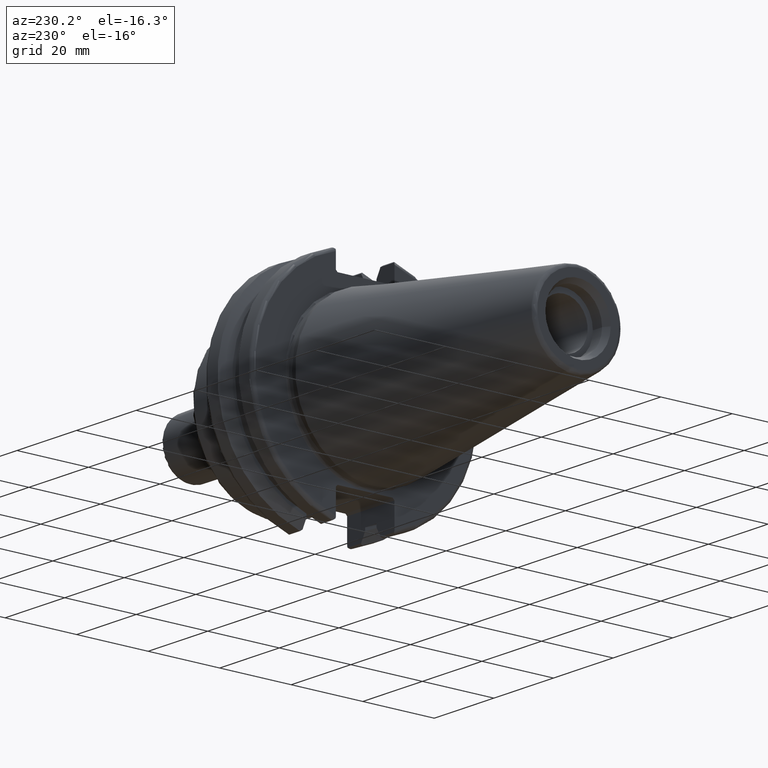
[diagram: clean part render]
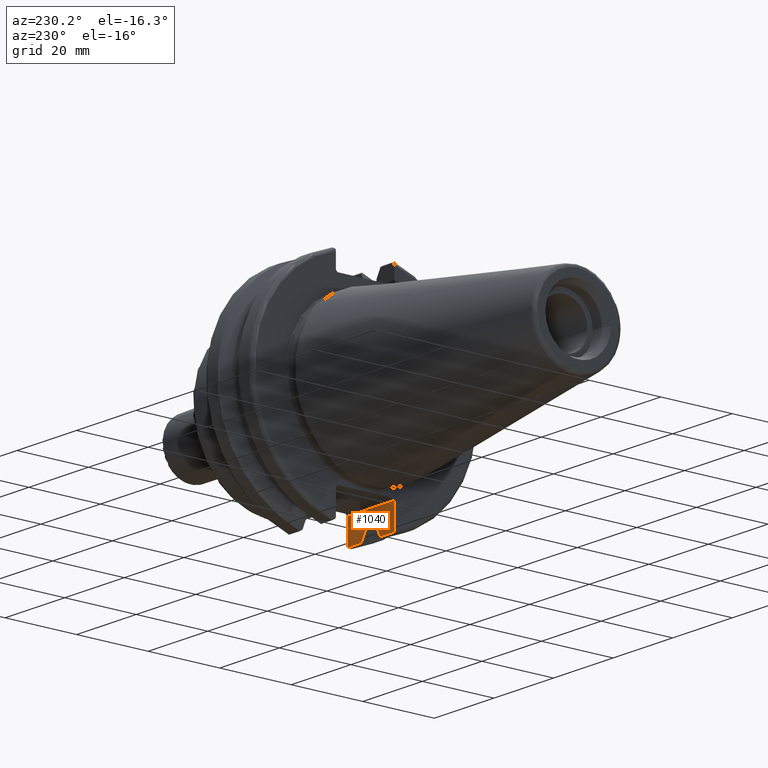
[diagram: same view with one face highlighted and labeled with its STEP entity id]
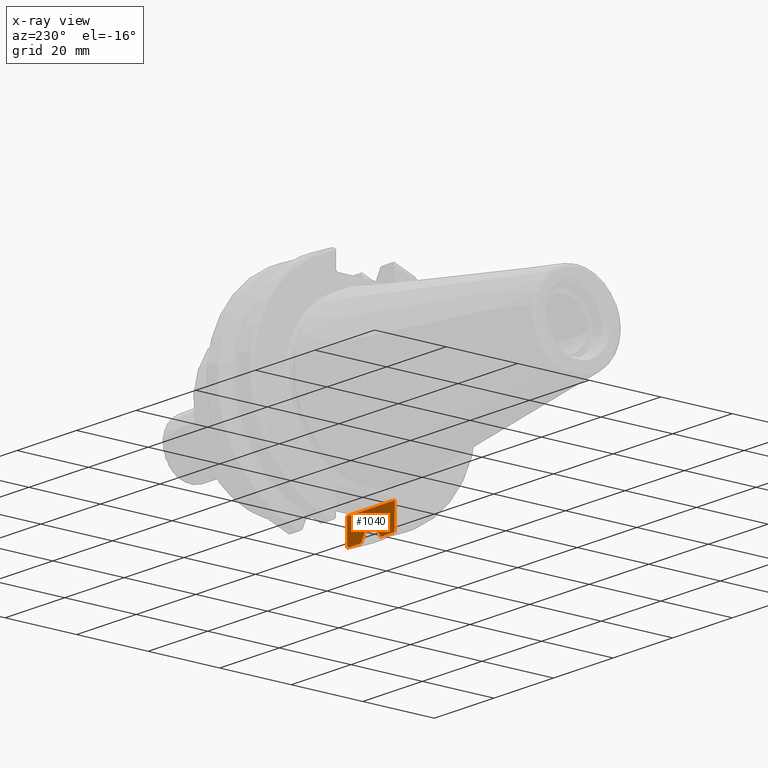
[diagram: x-ray of the same camera — body ghosted, the highlighted face saturated]
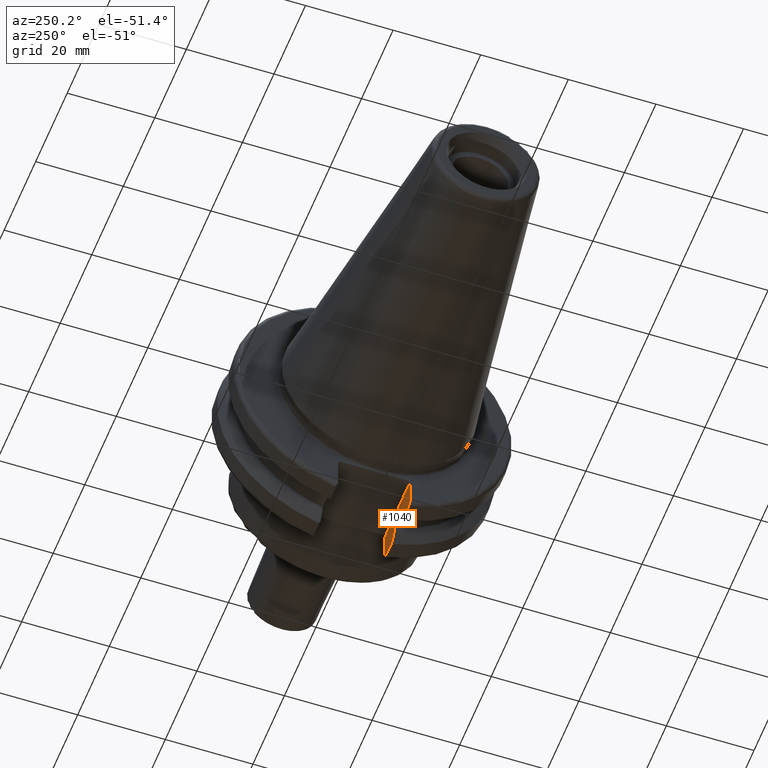
[diagram: same view with one face highlighted and labeled with its STEP entity id]
A machine part, auxiliary view. The second image highlights one B-rep face of the part: STEP entity #1040.
The next image is the same camera in x-ray: the body ghosted, the highlighted face saturated — about 0% of this face is hidden behind the body in this view.
A second angle (auxiliary view) of the same face is appended — the face is thin or edge-on in the first view.
In plain terms, the highlighted planar face has unit normal (0, -1, 0).
Its self-contained STEP definition (entity closure, byte-faithful):
#20=(
BOUNDED_CURVE()
B_SPLINE_CURVE(2,(#1786,#1787,#1788),.UNSPECIFIED.,.F.,.F.)
B_SPLINE_CURVE_WITH_KNOTS((3,3),(0.,0.276549142796619),.UNSPECIFIED.)
CURVE()
GEOMETRIC_REPRESENTATION_ITEM()
RATIONAL_B_SPLINE_CURVE((1.,1.00095203903827,1.00031614444983))
REPRESENTATION_ITEM('')
);
#21=(
BOUNDED_CURVE()
B_SPLINE_CURVE(2,(#1796,#1797,#1798),.UNSPECIFIED.,.F.,.F.)
B_SPLINE_CURVE_WITH_KNOTS((3,3),(0.0550586467396013,0.331607789535851),
 .UNSPECIFIED.)
CURVE()
GEOMETRIC_REPRESENTATION_ITEM()
RATIONAL_B_SPLINE_CURVE((1.00031614445107,1.00095203904202,1.))
REPRESENTATION_ITEM('')
);
#54=PLANE('',#1155);
#90=LINE('',#1625,#160);
#107=LINE('',#1718,#177);
#116=LINE('',#1784,#186);
#117=LINE('',#1790,#187);
#118=LINE('',#1792,#188);
#119=LINE('',#1794,#189);
#120=LINE('',#1800,#190);
#121=LINE('',#1807,#191);
#160=VECTOR('',#1316,10.);
#177=VECTOR('',#1351,10.);
#186=VECTOR('',#1368,10.);
#187=VECTOR('',#1369,10.);
#188=VECTOR('',#1370,10.);
#189=VECTOR('',#1371,10.);
#190=VECTOR('',#1372,10.);
#191=VECTOR('',#1373,10.);
#248=FACE_OUTER_BOUND('',#311,.T.);
#311=EDGE_LOOP('',(#820,#821,#822,#823,#824,#825,#826,#827,#828,#829,#830,
#831));
#361=B_SPLINE_CURVE_WITH_KNOTS('',3,(#1724,#1725,#1726,#1727,#1728,#1729),
 .UNSPECIFIED.,.F.,.F.,(4,2,4),(0.0977383630915687,0.112311108149119,0.150804350305566),
 .UNSPECIFIED.);
#366=B_SPLINE_CURVE_WITH_KNOTS('',3,(#1801,#1802,#1803,#1804,#1805,#1806),
 .UNSPECIFIED.,.F.,.F.,(4,2,4),(0.452741154494498,0.491581665024872,0.505824174364157),
 .UNSPECIFIED.);
#450=VERTEX_POINT('',#1603);
#460=VERTEX_POINT('',#1623);
#483=VERTEX_POINT('',#1715);
#484=VERTEX_POINT('',#1717);
#486=VERTEX_POINT('',#1723);
#497=VERTEX_POINT('',#1783);
#498=VERTEX_POINT('',#1785);
#499=VERTEX_POINT('',#1789);
#500=VERTEX_POINT('',#1791);
#501=VERTEX_POINT('',#1793);
#502=VERTEX_POINT('',#1795);
#503=VERTEX_POINT('',#1799);
#575=EDGE_CURVE('',#460,#450,#90,.T.);
#604=EDGE_CURVE('',#483,#484,#107,.T.);
#607=EDGE_CURVE('',#486,#483,#361,.T.);
#621=EDGE_CURVE('',#497,#486,#116,.T.);
#622=EDGE_CURVE('',#498,#497,#20,.T.);
#623=EDGE_CURVE('',#499,#498,#117,.T.);
#624=EDGE_CURVE('',#500,#499,#118,.T.);
#625=EDGE_CURVE('',#501,#500,#119,.T.);
#626=EDGE_CURVE('',#502,#501,#21,.T.);
#627=EDGE_CURVE('',#503,#502,#120,.T.);
#628=EDGE_CURVE('',#450,#503,#366,.T.);
#629=EDGE_CURVE('',#484,#460,#121,.T.);
#820=ORIENTED_EDGE('',*,*,#607,.F.);
#821=ORIENTED_EDGE('',*,*,#621,.F.);
#822=ORIENTED_EDGE('',*,*,#622,.F.);
#823=ORIENTED_EDGE('',*,*,#623,.F.);
#824=ORIENTED_EDGE('',*,*,#624,.F.);
#825=ORIENTED_EDGE('',*,*,#625,.F.);
#826=ORIENTED_EDGE('',*,*,#626,.F.);
#827=ORIENTED_EDGE('',*,*,#627,.F.);
#828=ORIENTED_EDGE('',*,*,#628,.F.);
#829=ORIENTED_EDGE('',*,*,#575,.F.);
#830=ORIENTED_EDGE('',*,*,#629,.F.);
#831=ORIENTED_EDGE('',*,*,#604,.F.);
#1040=ADVANCED_FACE('',(#248),#54,.F.);
#1155=AXIS2_PLACEMENT_3D('',#1782,#1366,#1367);
#1316=DIRECTION('',(0.,0.,-1.));
#1351=DIRECTION('',(0.,0.,1.));
#1366=DIRECTION('center_axis',(0.,-1.,0.));
#1367=DIRECTION('ref_axis',(-1.,0.,0.));
#1368=DIRECTION('',(1.,0.,0.));
#1369=DIRECTION('',(0.,0.,-1.));
#1370=DIRECTION('',(1.,0.,0.));
#1371=DIRECTION('',(0.,0.,1.));
#1372=DIRECTION('',(1.,0.,0.));
#1373=DIRECTION('',(-1.,0.,0.));
#1603=CARTESIAN_POINT('',(3.175,-8.19,-29.6392712461019));
#1623=CARTESIAN_POINT('',(3.175,-8.19,-23.1));
#1625=CARTESIAN_POINT('',(3.175,-8.19,-11.3));
#1715=CARTESIAN_POINT('',(19.05,-8.19,-29.6392712461019));
#1717=CARTESIAN_POINT('',(19.05,-8.19,-23.1));
#1718=CARTESIAN_POINT('',(19.05,-8.19,-11.3));
#1723=CARTESIAN_POINT('',(18.9058722749097,-8.19,-30.1755016258903));
#1724=CARTESIAN_POINT('Ctrl Pts',(18.9058722749097,-8.19,-30.1755016258903));
#1725=CARTESIAN_POINT('Ctrl Pts',(18.9324477233044,-8.19,-30.1299319366157));
#1726=CARTESIAN_POINT('Ctrl Pts',(18.9550700364447,-8.19,-30.0829389905409));
#1727=CARTESIAN_POINT('Ctrl Pts',(19.0210043632013,-8.19,-29.9188002007263));
#1728=CARTESIAN_POINT('Ctrl Pts',(19.05,-8.19,-29.76758205329));
#1729=CARTESIAN_POINT('Ctrl Pts',(19.05,-8.19,-29.6392712461019));
#1782=CARTESIAN_POINT('Origin',(20.05,-8.19,-22.6));
#1783=CARTESIAN_POINT('',(14.3744146964874,-8.19,-30.1755016258903));
#1784=CARTESIAN_POINT('',(16.8515833845378,-8.19,-30.1755016258903));
#1785=CARTESIAN_POINT('',(13.042,-8.19,-27.7771386827498));
#1786=CARTESIAN_POINT('Ctrl Pts',(13.042,-8.19,-27.7771386827498));
#1787=CARTESIAN_POINT('Ctrl Pts',(13.6806364384734,-8.19,-28.9303689539657));
#1788=CARTESIAN_POINT('Ctrl Pts',(14.3744146964874,-8.19,-30.1755016258903));
#1789=CARTESIAN_POINT('',(13.042,-8.19,-26.932255754021));
#1790=CARTESIAN_POINT('',(13.042,-8.19,-11.3));
#1791=CARTESIAN_POINT('',(9.212,-8.19,-26.932255754021));
#1792=CARTESIAN_POINT('',(11.127,-8.19,-26.932255754021));
#1793=CARTESIAN_POINT('',(9.212,-8.19,-27.7771386827498));
#1794=CARTESIAN_POINT('',(9.212,-8.19,-11.3));
#1795=CARTESIAN_POINT('',(7.87958530351256,-8.19,-30.1755016258903));
#1796=CARTESIAN_POINT('Ctrl Pts',(7.87958530351256,-8.19,-30.1755016258903));
#1797=CARTESIAN_POINT('Ctrl Pts',(8.57336356151926,-8.19,-28.9303689539789));
#1798=CARTESIAN_POINT('Ctrl Pts',(9.212,-8.19,-27.7771386827498));
#1799=CARTESIAN_POINT('',(3.31912772509028,-8.19,-30.1755016258903));
#1800=CARTESIAN_POINT('',(5.38791661546218,-8.19,-30.1755016258903));
#1801=CARTESIAN_POINT('Ctrl Pts',(3.175,-8.19,-29.6392712461018));
#1802=CARTESIAN_POINT('Ctrl Pts',(3.175,-8.19,-29.7687396145364));
#1803=CARTESIAN_POINT('Ctrl Pts',(3.20451443291695,-8.19,-29.9212724384851));
#1804=CARTESIAN_POINT('Ctrl Pts',(3.27103565282437,-8.19,-30.0852355256475));
#1805=CARTESIAN_POINT('Ctrl Pts',(3.29318362718666,-8.19,-30.131014531546));
#1806=CARTESIAN_POINT('Ctrl Pts',(3.31912772509028,-8.19,-30.1755016258903));
#1807=CARTESIAN_POINT('',(17.87875,-8.19,-23.1));